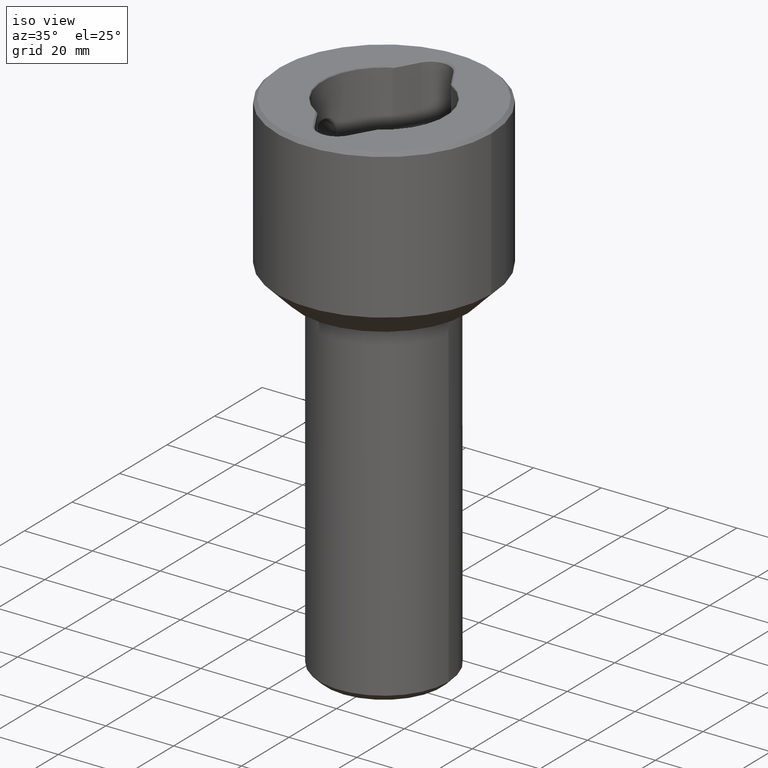
[diagram: clean part render]
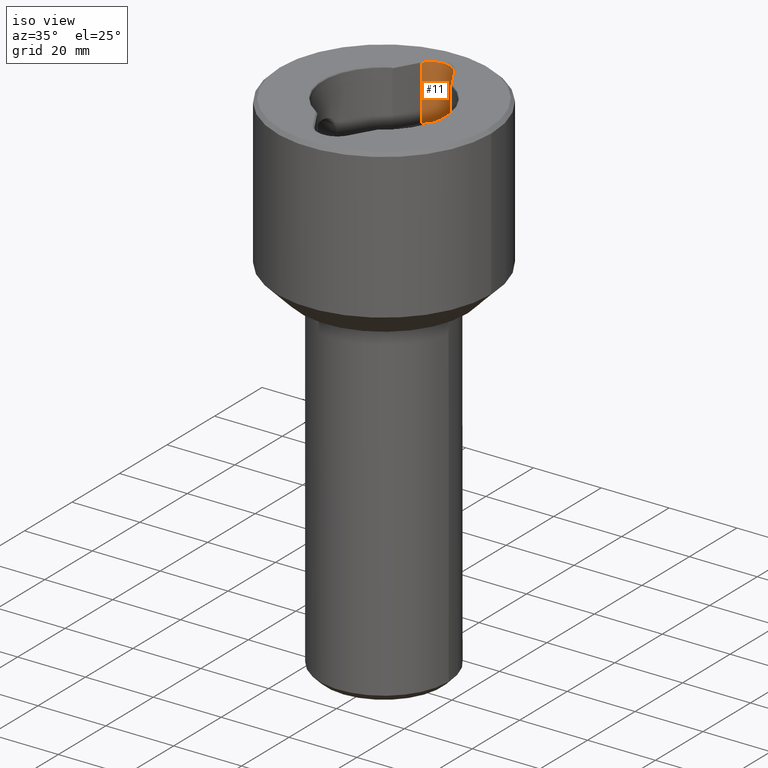
[diagram: same view with one face highlighted and labeled with its STEP entity id]
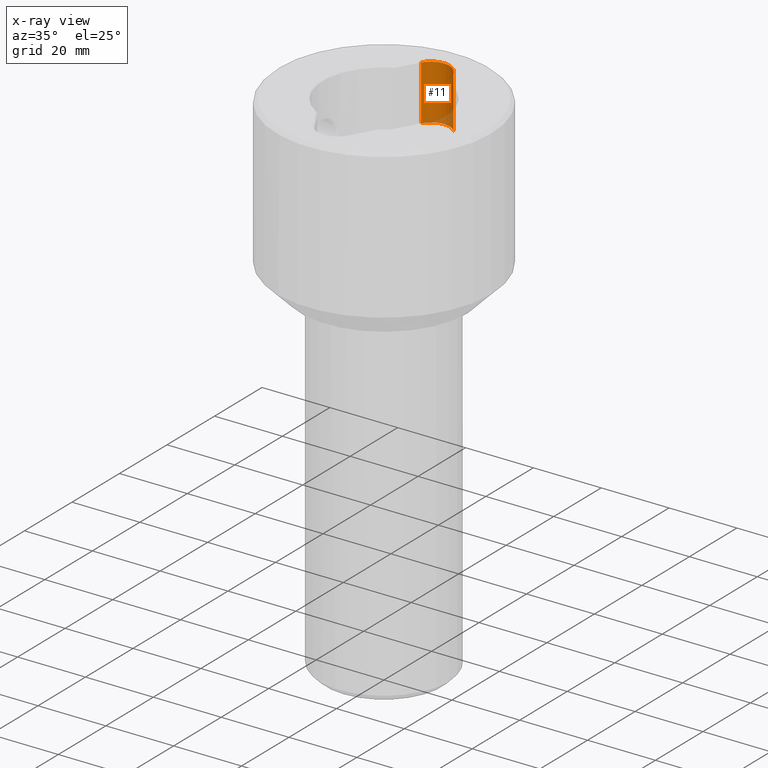
[diagram: x-ray of the same camera — body ghosted, the highlighted face saturated]
A machine part, iso view. The second image highlights one B-rep face of the part: STEP entity #11.
The next image is the same camera in x-ray: the body ghosted, the highlighted face saturated — about 8% of this face is hidden behind the body in this view.
In plain terms, the highlighted cylindrical surface (edge-blend (fillet) strip) has radius 5.5 mm, axis along (-0, -0, 1).
Its self-contained STEP definition (entity closure, byte-faithful):
#11 = ADVANCED_FACE ( 'NONE', ( #849 ), #1421, .F. ) ;
#34 = CIRCLE ( 'NONE', #1069, 5.500000000000000000 ) ;
#89 = CARTESIAN_POINT ( 'NONE',  ( -8.673617379884035472E-15, 19.70000000000003837, -0.4000000000568444403 ) ) ;
#114 = DIRECTION ( 'NONE',  ( -1.000000000000000000, 0.0000000000000000000, 0.0000000000000000000 ) ) ;
#115 = EDGE_CURVE ( 'NONE', #1458, #720, #588, .T. ) ;
#227 = DIRECTION ( 'NONE',  ( 0.0000000000000000000, 0.0000000000000000000, 1.000000000000000000 ) ) ;
#267 = EDGE_CURVE ( 'NONE', #462, #1668, #473, .T. ) ;
#280 = CARTESIAN_POINT ( 'NONE',  ( -4.763139720814428379, 22.45000000000002061, -0.4000000000568514347 ) ) ;
#355 = DIRECTION ( 'NONE',  ( 1.000000000000000000, 0.0000000000000000000, 0.0000000000000000000 ) ) ;
#373 = DIRECTION ( 'NONE',  ( 1.000000000000000000, 0.0000000000000000000, 0.0000000000000000000 ) ) ;
#435 = EDGE_CURVE ( 'NONE', #462, #1458, #882, .T. ) ;
#462 = VERTEX_POINT ( 'NONE', #784 ) ;
#473 = LINE ( 'NONE', #768, #962 ) ;
#519 = EDGE_LOOP ( 'NONE', ( #926, #937, #1056, #1229 ) ) ;
#533 = CARTESIAN_POINT ( 'NONE',  ( -4.763139720814428379, 22.45000000000002061, -16.60000000005684484 ) ) ;
#588 = LINE ( 'NONE', #533, #1513 ) ;
#614 = CARTESIAN_POINT ( 'NONE',  ( -4.763139720814428379, 22.45000000000002061, -16.60000000005684484 ) ) ;
#659 = CARTESIAN_POINT ( 'NONE',  ( -8.673617379884035472E-15, 19.70000000000003837, -16.60000000005684484 ) ) ;
#689 = AXIS2_PLACEMENT_3D ( 'NONE', #1510, #1636, #373 ) ;
#720 = VERTEX_POINT ( 'NONE', #280 ) ;
#768 = CARTESIAN_POINT ( 'NONE',  ( 4.763139720814412392, 22.45000000000002061, -16.60000000005684484 ) ) ;
#784 = CARTESIAN_POINT ( 'NONE',  ( 4.763139720814412392, 22.45000000000002061, -16.60000000005684484 ) ) ;
#849 = FACE_OUTER_BOUND ( 'NONE', #519, .T. ) ;
#876 = AXIS2_PLACEMENT_3D ( 'NONE', #659, #1285, #114 ) ;
#882 = CIRCLE ( 'NONE', #876, 5.500000000000000000 ) ;
#926 = ORIENTED_EDGE ( 'NONE', *, *, #267, .T. ) ;
#937 = ORIENTED_EDGE ( 'NONE', *, *, #1416, .T. ) ;
#962 = VECTOR ( 'NONE', #1312, 1000.000000000000000 ) ;
#1037 = CARTESIAN_POINT ( 'NONE',  ( 4.763139720814412392, 22.45000000000002061, -0.4000000000568514347 ) ) ;
#1056 = ORIENTED_EDGE ( 'NONE', *, *, #115, .F. ) ;
#1069 = AXIS2_PLACEMENT_3D ( 'NONE', #89, #227, #355 ) ;
#1229 = ORIENTED_EDGE ( 'NONE', *, *, #435, .F. ) ;
#1285 = DIRECTION ( 'NONE',  ( 0.0000000000000000000, 0.0000000000000000000, 1.000000000000000000 ) ) ;
#1312 = DIRECTION ( 'NONE',  ( -0.0000000000000000000, -0.0000000000000000000, 1.000000000000000000 ) ) ;
#1416 = EDGE_CURVE ( 'NONE', #1668, #720, #34, .T. ) ;
#1421 = CYLINDRICAL_SURFACE ( 'NONE', #689, 5.500000000000000000 ) ;
#1458 = VERTEX_POINT ( 'NONE', #614 ) ;
#1510 = CARTESIAN_POINT ( 'NONE',  ( -8.673617379884035472E-15, 19.70000000000003837, -16.60000000005684484 ) ) ;
#1513 = VECTOR ( 'NONE', #1538, 1000.000000000000000 ) ;
#1538 = DIRECTION ( 'NONE',  ( -0.0000000000000000000, -0.0000000000000000000, 1.000000000000000000 ) ) ;
#1636 = DIRECTION ( 'NONE',  ( -0.0000000000000000000, -0.0000000000000000000, 1.000000000000000000 ) ) ;
#1668 = VERTEX_POINT ( 'NONE', #1037 ) ;